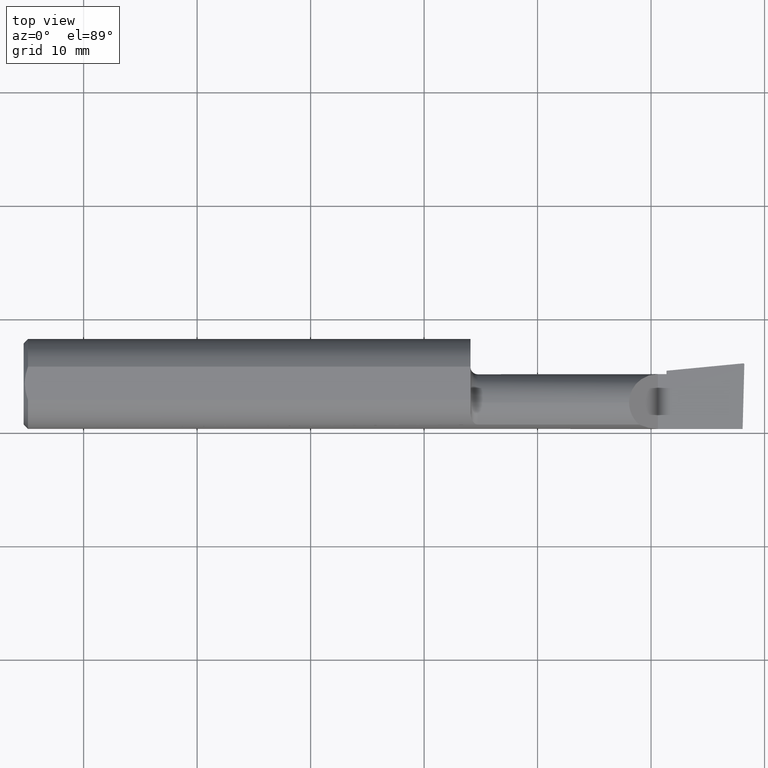
[diagram: clean part render]
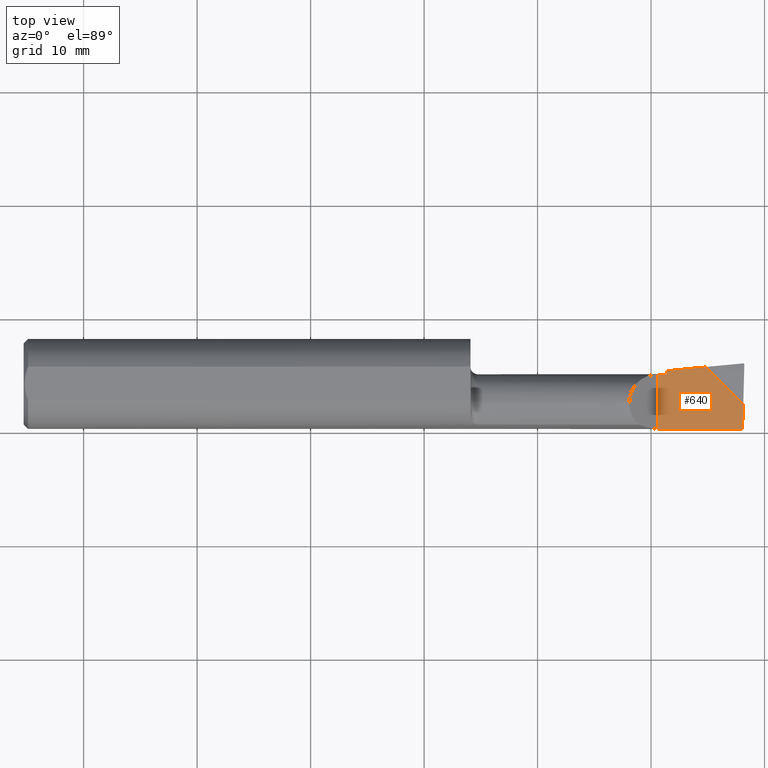
[diagram: same view with one face highlighted and labeled with its STEP entity id]
A machine part, top view. The second image highlights one B-rep face of the part: STEP entity #640.
In plain terms, the highlighted planar face has unit normal (0, 0, -1).
Its self-contained STEP definition (entity closure, byte-faithful):
#26 = ORIENTED_EDGE ( 'NONE', *, *, #739, .T. ) ;
#43 = CARTESIAN_POINT ( 'NONE',  ( 55.88000000000000256, 4.444999999999999396, -8.673617379884035472E-16 ) ) ;
#91 = DIRECTION ( 'NONE',  ( -0.9953961983671788527, -0.09584575252022424496, 0.000000000000000000 ) ) ;
#95 = CARTESIAN_POINT ( 'NONE',  ( 55.88000000000000256, 4.444999999999999396, -8.673617379884035472E-16 ) ) ;
#115 = CARTESIAN_POINT ( 'NONE',  ( 39.37000000000000455, 0.8610600000000002696, -8.673617379884035472E-16 ) ) ;
#195 = EDGE_CURVE ( 'NONE', #528, #300, #644, .T. ) ;
#244 = EDGE_CURVE ( 'NONE', #684, #1206, #554, .T. ) ;
#281 = VERTEX_POINT ( 'NONE', #661 ) ;
#300 = VERTEX_POINT ( 'NONE', #880 ) ;
#320 = VECTOR ( 'NONE', #752, 1000.000000000000000 ) ;
#362 = CARTESIAN_POINT ( 'NONE',  ( 56.64199999999999591, 4.444999999999999396, -8.673617379884035472E-16 ) ) ;
#365 = EDGE_CURVE ( 'NONE', #528, #281, #969, .T. ) ;
#367 = LINE ( 'NONE', #95, #1144 ) ;
#416 = LINE ( 'NONE', #805, #1204 ) ;
#424 = DIRECTION ( 'NONE',  ( -0.000000000000000000, 0.000000000000000000, -1.000000000000000000 ) ) ;
#447 = CARTESIAN_POINT ( 'NONE',  ( 56.64199999999999591, 0.8610600000000002696, -8.673617379884035472E-16 ) ) ;
#514 = ORIENTED_EDGE ( 'NONE', *, *, #195, .F. ) ;
#525 = FACE_OUTER_BOUND ( 'NONE', #865, .T. ) ;
#528 = VERTEX_POINT ( 'NONE', #635 ) ;
#542 = VECTOR ( 'NONE', #856, 1000.000000000000000 ) ;
#554 = LINE ( 'NONE', #362, #320 ) ;
#556 = ORIENTED_EDGE ( 'NONE', *, *, #1081, .F. ) ;
#576 = CARTESIAN_POINT ( 'NONE',  ( 60.14048454551708289, 1.502775454482919715, 0.000000000000000000 ) ) ;
#635 = CARTESIAN_POINT ( 'NONE',  ( 63.34721324168081225, -3.964939999999998577, -1.734723475976807094E-15 ) ) ;
#638 = VERTEX_POINT ( 'NONE', #1100 ) ;
#640 = ADVANCED_FACE ( 'NONE', ( #525 ), #906, .F. ) ;
#644 = LINE ( 'NONE', #1035, #542 ) ;
#655 = DIRECTION ( 'NONE',  ( -0.000000000000000000, 1.000000000000000000, -0.000000000000000000 ) ) ;
#658 = CARTESIAN_POINT ( 'NONE',  ( 56.19984000534059021, 1.123334542424496041, -8.673617379884035472E-16 ) ) ;
#661 = CARTESIAN_POINT ( 'NONE',  ( 63.40533060490047035, -1.762070604900508375, 0.000000000000000000 ) ) ;
#684 = VERTEX_POINT ( 'NONE', #447 ) ;
#739 = EDGE_CURVE ( 'NONE', #1112, #1206, #1131, .T. ) ;
#752 = DIRECTION ( 'NONE',  ( 0.000000000000000000, 1.000000000000000000, 0.000000000000000000 ) ) ;
#757 = CARTESIAN_POINT ( 'NONE',  ( 56.64199999999999591, 1.165909707461279421, -8.673617379884035472E-16 ) ) ;
#769 = ORIENTED_EDGE ( 'NONE', *, *, #365, .T. ) ;
#792 = EDGE_CURVE ( 'NONE', #638, #684, #1062, .T. ) ;
#805 = CARTESIAN_POINT ( 'NONE',  ( 59.81700000000000017, 1.826260000000002215, 0.000000000000000000 ) ) ;
#811 = ORIENTED_EDGE ( 'NONE', *, *, #244, .F. ) ;
#856 = DIRECTION ( 'NONE',  ( -1.000000000000000000, -0.000000000000000000, -0.000000000000000000 ) ) ;
#865 = EDGE_LOOP ( 'NONE', ( #769, #881, #26, #811, #1119, #556, #514 ) ) ;
#874 = VECTOR ( 'NONE', #1173, 1000.000000000000114 ) ;
#880 = CARTESIAN_POINT ( 'NONE',  ( 55.88000000000000256, -3.964939999999999465, -8.673617379884035472E-16 ) ) ;
#881 = ORIENTED_EDGE ( 'NONE', *, *, #905, .F. ) ;
#892 = CARTESIAN_POINT ( 'NONE',  ( 63.56374090757875450, 4.242283142520748562, -8.673617379884035472E-16 ) ) ;
#905 = EDGE_CURVE ( 'NONE', #1112, #281, #416, .T. ) ;
#906 = PLANE ( 'NONE',  #986 ) ;
#946 = VECTOR ( 'NONE', #91, 999.9999999999998863 ) ;
#969 = LINE ( 'NONE', #892, #874 ) ;
#986 = AXIS2_PLACEMENT_3D ( 'NONE', #43, #424, #1205 ) ;
#1035 = CARTESIAN_POINT ( 'NONE',  ( 63.50000000000000000, -3.964939999999998577, -8.673617379884035472E-16 ) ) ;
#1048 = VECTOR ( 'NONE', #1068, 1000.000000000000000 ) ;
#1062 = LINE ( 'NONE', #115, #1048 ) ;
#1068 = DIRECTION ( 'NONE',  ( 1.000000000000000000, 0.000000000000000000, 0.000000000000000000 ) ) ;
#1081 = EDGE_CURVE ( 'NONE', #300, #638, #367, .T. ) ;
#1100 = CARTESIAN_POINT ( 'NONE',  ( 55.88000000000000256, 0.8610600000000002696, -8.673617379884035472E-16 ) ) ;
#1112 = VERTEX_POINT ( 'NONE', #576 ) ;
#1119 = ORIENTED_EDGE ( 'NONE', *, *, #792, .F. ) ;
#1131 = LINE ( 'NONE', #658, #946 ) ;
#1144 = VECTOR ( 'NONE', #655, 1000.000000000000000 ) ;
#1173 = DIRECTION ( 'NONE',  ( 0.02637339639456100920, 0.9996521614854915194, 0.000000000000000000 ) ) ;
#1197 = DIRECTION ( 'NONE',  ( 0.7071067811865439090, -0.7071067811865512365, 0.000000000000000000 ) ) ;
#1204 = VECTOR ( 'NONE', #1197, 1000.000000000000000 ) ;
#1205 = DIRECTION ( 'NONE',  ( -1.000000000000000000, 0.000000000000000000, 0.000000000000000000 ) ) ;
#1206 = VERTEX_POINT ( 'NONE', #757 ) ;